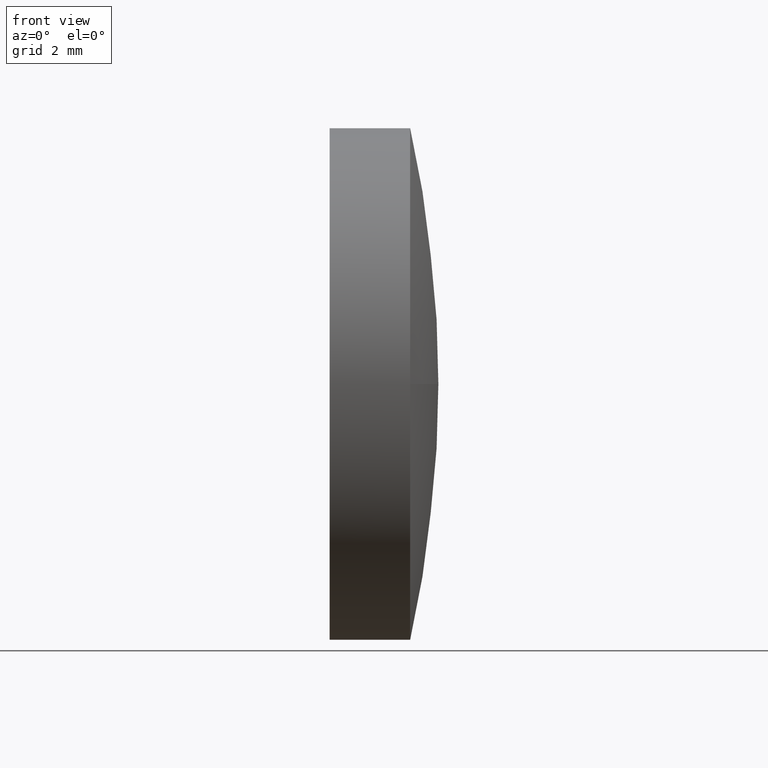
[diagram: clean part render]
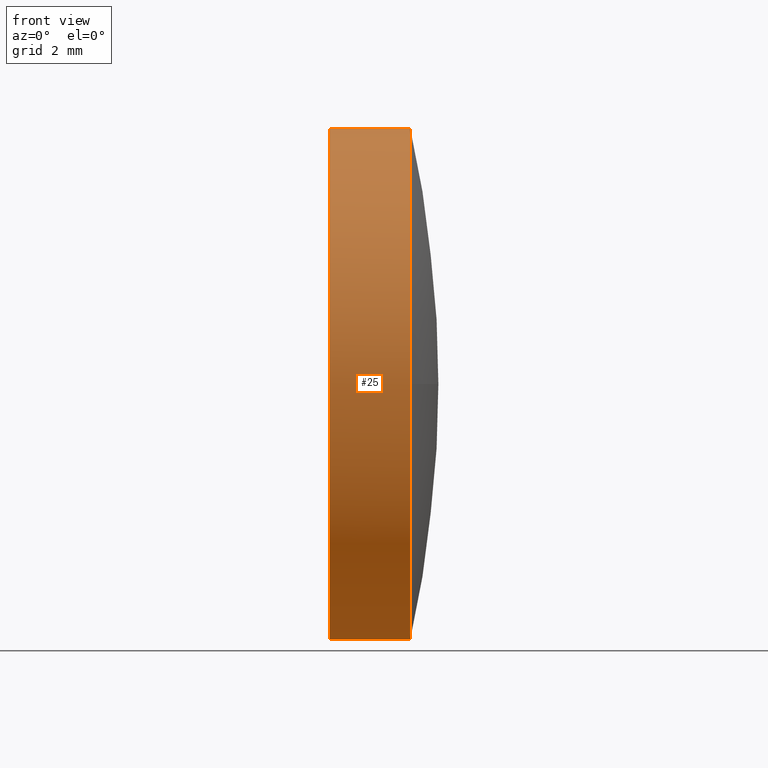
[diagram: same view with one face highlighted and labeled with its STEP entity id]
A machine part, front view. The second image highlights one B-rep face of the part: STEP entity #25.
In plain terms, the highlighted cylindrical surface (partial cylindrical patch) has radius 6.35 mm, axis along (-1, -0, -0).
Its self-contained STEP definition (entity closure, byte-faithful):
#1 = EDGE_CURVE ( 'NONE', #74, #85, #34, .T. ) ;
#3 = CIRCLE ( 'NONE', #124, 6.349999999999994300 ) ;
#5 = CIRCLE ( 'NONE', #137, 6.349999999999994300 ) ;
#8 = CARTESIAN_POINT ( 'NONE',  ( 456.1343835801833400, 88.53423358317982700, 0.0000000000000000000 ) ) ;
#11 = CARTESIAN_POINT ( 'NONE',  ( 460.3949147260378300, 88.53423358317982700, 0.0000000000000000000 ) ) ;
#13 = DIRECTION ( 'NONE',  ( -1.000000000000000000, -0.0000000000000000000, -0.0000000000000000000 ) ) ;
#19 = ORIENTED_EDGE ( 'NONE', *, *, #131, .F. ) ;
#24 = DIRECTION ( 'NONE',  ( -1.000000000000000000, -0.0000000000000000000, -0.0000000000000000000 ) ) ;
#25 = ADVANCED_FACE ( 'NONE', ( #88 ), #45, .T. ) ;
#30 = VERTEX_POINT ( 'NONE', #111 ) ;
#31 = DIRECTION ( 'NONE',  ( -1.000000000000000000, -0.0000000000000000000, -0.0000000000000000000 ) ) ;
#32 = EDGE_CURVE ( 'NONE', #135, #30, #176, .T. ) ;
#34 = LINE ( 'NONE', #146, #53 ) ;
#36 = CARTESIAN_POINT ( 'NONE',  ( 456.1343835801833400, 88.53423358317982700, 6.349999999999994300 ) ) ;
#45 = CYLINDRICAL_SURFACE ( 'NONE', #89, 6.349999999999994300 ) ;
#47 = CARTESIAN_POINT ( 'NONE',  ( 458.3949147260378300, 88.53423358317982700, 0.0000000000000000000 ) ) ;
#53 = VECTOR ( 'NONE', #24, 1000.000000000000000 ) ;
#60 = ORIENTED_EDGE ( 'NONE', *, *, #114, .T. ) ;
#73 = CARTESIAN_POINT ( 'NONE',  ( 458.3949147260378300, 88.53423358317982700, 6.349999999999994300 ) ) ;
#74 = VERTEX_POINT ( 'NONE', #96 ) ;
#85 = VERTEX_POINT ( 'NONE', #186 ) ;
#88 = FACE_OUTER_BOUND ( 'NONE', #91, .T. ) ;
#89 = AXIS2_PLACEMENT_3D ( 'NONE', #8, #173, #93 ) ;
#91 = EDGE_LOOP ( 'NONE', ( #115, #60, #181, #165, #19 ) ) ;
#93 = DIRECTION ( 'NONE',  ( 0.0000000000000000000, 0.0000000000000000000, 1.000000000000000000 ) ) ;
#96 = CARTESIAN_POINT ( 'NONE',  ( 460.3949147260378300, 88.53423358317982700, -6.349999999999994300 ) ) ;
#102 = AXIS2_PLACEMENT_3D ( 'NONE', #11, #13, #147 ) ;
#103 = LINE ( 'NONE', #36, #128 ) ;
#111 = CARTESIAN_POINT ( 'NONE',  ( 460.3949147260378300, 88.53423358317982700, 6.349999999999994300 ) ) ;
#114 = EDGE_CURVE ( 'NONE', #74, #135, #3, .T. ) ;
#115 = ORIENTED_EDGE ( 'NONE', *, *, #1, .F. ) ;
#124 = AXIS2_PLACEMENT_3D ( 'NONE', #150, #31, #132 ) ;
#128 = VECTOR ( 'NONE', #167, 1000.000000000000000 ) ;
#131 = EDGE_CURVE ( 'NONE', #85, #185, #5, .T. ) ;
#132 = DIRECTION ( 'NONE',  ( 0.0000000000000000000, 0.0000000000000000000, 1.000000000000000000 ) ) ;
#133 = CARTESIAN_POINT ( 'NONE',  ( 460.3949147260378300, 82.18423358317983200, -7.776507174585661600E-016 ) ) ;
#135 = VERTEX_POINT ( 'NONE', #133 ) ;
#136 = DIRECTION ( 'NONE',  ( -1.000000000000000000, -0.0000000000000000000, -0.0000000000000000000 ) ) ;
#137 = AXIS2_PLACEMENT_3D ( 'NONE', #47, #136, #151 ) ;
#146 = CARTESIAN_POINT ( 'NONE',  ( 456.1343835801833400, 88.53423358317982700, -6.349999999999994300 ) ) ;
#147 = DIRECTION ( 'NONE',  ( 0.0000000000000000000, 0.0000000000000000000, 1.000000000000000000 ) ) ;
#150 = CARTESIAN_POINT ( 'NONE',  ( 460.3949147260378300, 88.53423358317982700, 0.0000000000000000000 ) ) ;
#151 = DIRECTION ( 'NONE',  ( 0.0000000000000000000, 0.0000000000000000000, 1.000000000000000000 ) ) ;
#165 = ORIENTED_EDGE ( 'NONE', *, *, #177, .T. ) ;
#167 = DIRECTION ( 'NONE',  ( -1.000000000000000000, -0.0000000000000000000, -0.0000000000000000000 ) ) ;
#173 = DIRECTION ( 'NONE',  ( -1.000000000000000000, -0.0000000000000000000, -0.0000000000000000000 ) ) ;
#176 = CIRCLE ( 'NONE', #102, 6.349999999999994300 ) ;
#177 = EDGE_CURVE ( 'NONE', #30, #185, #103, .T. ) ;
#181 = ORIENTED_EDGE ( 'NONE', *, *, #32, .T. ) ;
#185 = VERTEX_POINT ( 'NONE', #73 ) ;
#186 = CARTESIAN_POINT ( 'NONE',  ( 458.3949147260378300, 88.53423358317982700, -6.349999999999994300 ) ) ;